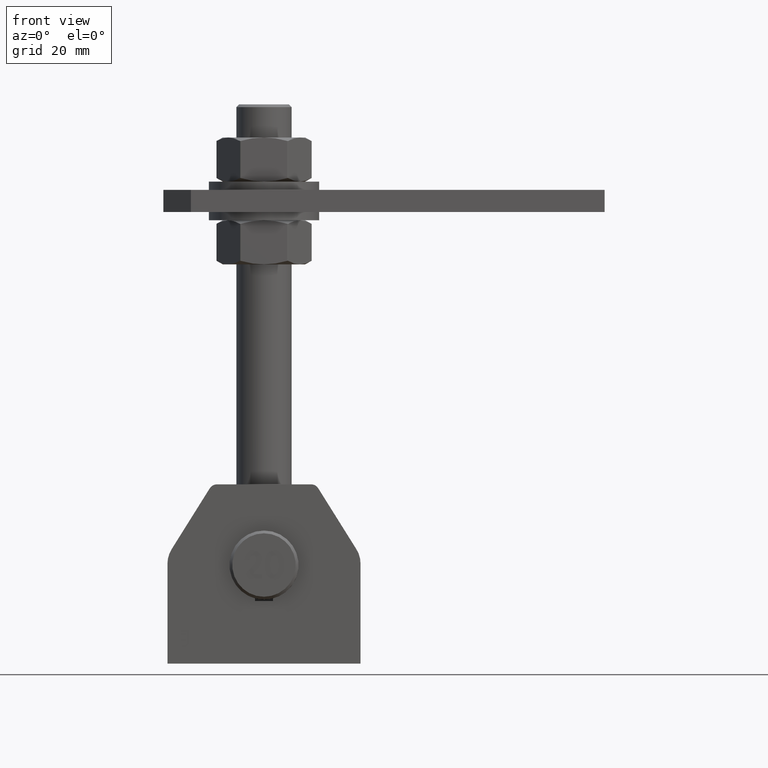
[diagram: clean part render]
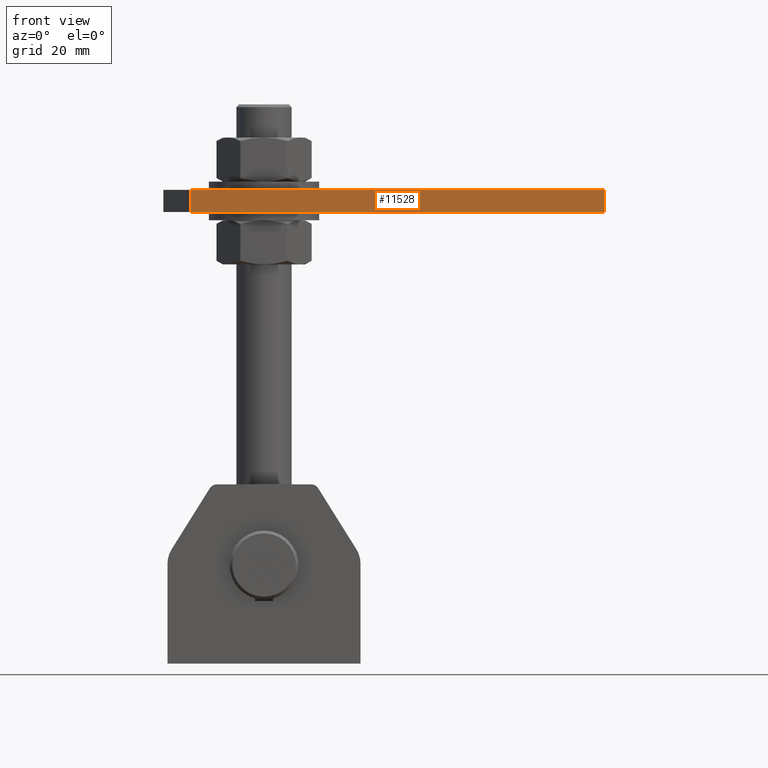
[diagram: same view with one face highlighted and labeled with its STEP entity id]
A machine part, front view. The second image highlights one B-rep face of the part: STEP entity #11528.
In plain terms, the highlighted planar face has unit normal (-0, 1, 0).
Its self-contained STEP definition (entity closure, byte-faithful):
#1601 = EDGE_CURVE ( 'NONE', #4508, #18611, #17738, .T. ) ;
#2356 = DIRECTION ( 'NONE',  ( 0.000000000000000000, 4.022099247622238976E-63, -1.000000000000000000 ) ) ;
#2383 = EDGE_CURVE ( 'NONE', #18611, #13878, #22140, .T. ) ;
#2555 = AXIS2_PLACEMENT_3D ( 'NONE', #12518, #3038, #6877 ) ;
#3038 = DIRECTION ( 'NONE',  ( -4.931294844412448686E-48, 1.000000000000000000, 4.022099247622238976E-63 ) ) ;
#3908 = CARTESIAN_POINT ( 'NONE',  ( -80.00000000000001421, -30.00000000000000711, 4.000000000000170530 ) ) ;
#3999 = CARTESIAN_POINT ( 'NONE',  ( 80.00000000000001421, -30.00000000000000711, 4.000000000000003553 ) ) ;
#4508 = VERTEX_POINT ( 'NONE', #4939 ) ;
#4888 = PLANE ( 'NONE',  #2555 ) ;
#4939 = CARTESIAN_POINT ( 'NONE',  ( -69.99999999999998579, -30.00000000000000711, 4.000000000000003553 ) ) ;
#5658 = EDGE_CURVE ( 'NONE', #4508, #10006, #8464, .T. ) ;
#6877 = DIRECTION ( 'NONE',  ( 0.000000000000000000, -4.022099247622238976E-63, 1.000000000000000000 ) ) ;
#7243 = VECTOR ( 'NONE', #21348, 1000.000000000000000 ) ;
#7508 = VECTOR ( 'NONE', #10816, 1000.000000000000000 ) ;
#8003 = ORIENTED_EDGE ( 'NONE', *, *, #1601, .T. ) ;
#8464 = LINE ( 'NONE', #3908, #15298 ) ;
#8916 = CARTESIAN_POINT ( 'NONE',  ( -80.00000000000001421, -30.00000000000000711, -3.999999999999837019 ) ) ;
#10006 = VERTEX_POINT ( 'NONE', #3999 ) ;
#10816 = DIRECTION ( 'NONE',  ( 1.000000000000000000, -4.931294844412451117E-48, 0.000000000000000000 ) ) ;
#11527 = FACE_OUTER_BOUND ( 'NONE', #13270, .T. ) ;
#11528 = ADVANCED_FACE ( 'NONE', ( #11527 ), #4888, .F. ) ;
#11951 = CARTESIAN_POINT ( 'NONE',  ( -69.99999999999998579, -30.00000000000000711, 4.000000000000003553 ) ) ;
#12274 = EDGE_CURVE ( 'NONE', #10006, #13878, #20847, .T. ) ;
#12518 = CARTESIAN_POINT ( 'NONE',  ( -80.00000000000001421, -30.00000000000000711, 4.000000000000170530 ) ) ;
#13148 = ORIENTED_EDGE ( 'NONE', *, *, #5658, .F. ) ;
#13270 = EDGE_LOOP ( 'NONE', ( #13148, #8003, #20599, #15608 ) ) ;
#13878 = VERTEX_POINT ( 'NONE', #16610 ) ;
#15298 = VECTOR ( 'NONE', #15424, 1000.000000000000000 ) ;
#15424 = DIRECTION ( 'NONE',  ( 1.000000000000000000, -4.931294844412451117E-48, 0.000000000000000000 ) ) ;
#15608 = ORIENTED_EDGE ( 'NONE', *, *, #12274, .F. ) ;
#16610 = CARTESIAN_POINT ( 'NONE',  ( 80.00000000000001421, -30.00000000000000711, -4.000000000000003553 ) ) ;
#17738 = LINE ( 'NONE', #11951, #7243 ) ;
#18611 = VERTEX_POINT ( 'NONE', #24086 ) ;
#19660 = VECTOR ( 'NONE', #2356, 1000.000000000000000 ) ;
#20599 = ORIENTED_EDGE ( 'NONE', *, *, #2383, .T. ) ;
#20847 = LINE ( 'NONE', #24714, #19660 ) ;
#21348 = DIRECTION ( 'NONE',  ( 0.000000000000000000, 4.022099247622238976E-63, -1.000000000000000000 ) ) ;
#22140 = LINE ( 'NONE', #8916, #7508 ) ;
#24086 = CARTESIAN_POINT ( 'NONE',  ( -69.99999999999998579, -30.00000000000000711, -4.000000000000003553 ) ) ;
#24714 = CARTESIAN_POINT ( 'NONE',  ( 80.00000000000001421, -30.00000000000000711, 4.000000000000003553 ) ) ;